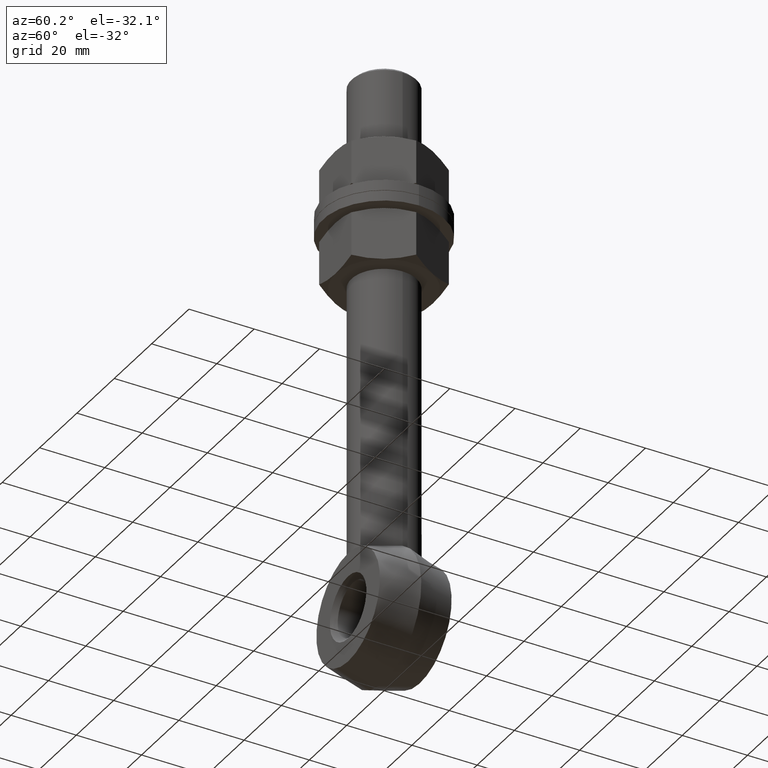
[diagram: clean part render]
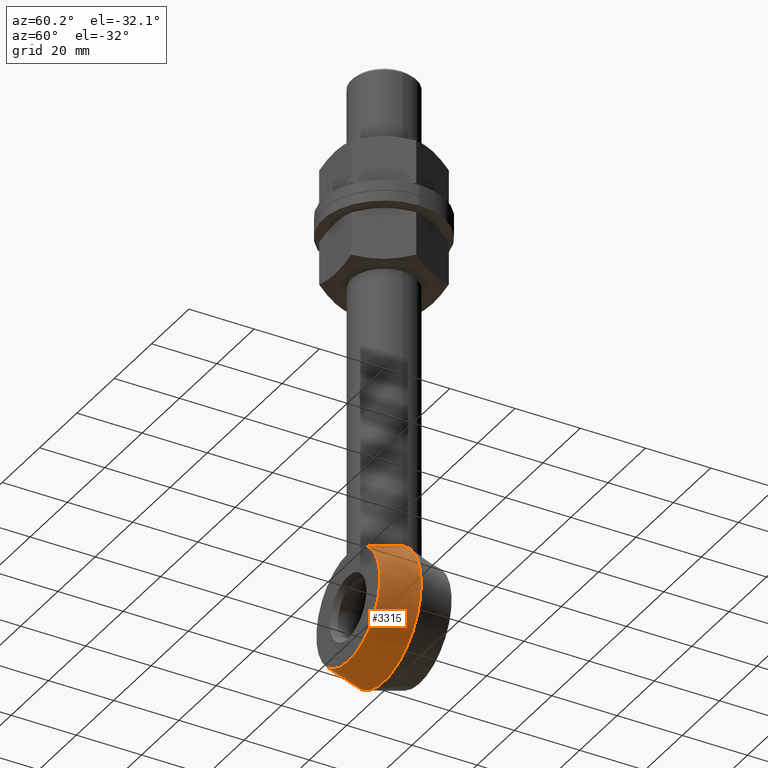
[diagram: same view with one face highlighted and labeled with its STEP entity id]
A machine part, auxiliary view. The second image highlights one B-rep face of the part: STEP entity #3315.
In plain terms, the highlighted conical surface has half-angle 15.255 deg.
Its self-contained STEP definition (entity closure, byte-faithful):
#208 = CARTESIAN_POINT ( 'NONE',  ( -9.999999999999989342, 4.840303024962320483E-16, -66.17949192431122185 ) ) ;
#282 = DIRECTION ( 'NONE',  ( -0.000000000000000000, 1.000000000000000000, -0.000000000000000000 ) ) ;
#283 = CARTESIAN_POINT ( 'NONE',  ( -9.009806786077419360, -4.387856314192352336, -66.99471067820522308 ) ) ;
#382 = CARTESIAN_POINT ( 'NONE',  ( 10.00000000000000711, 0.000000000000000000, -66.17949192431123606 ) ) ;
#442 = EDGE_CURVE ( 'NONE', #5911, #5571, #2050, .T. ) ;
#821 = CARTESIAN_POINT ( 'NONE',  ( -8.703416276451292788, -4.969129270617967720, -67.00786110837803733 ) ) ;
#869 = CARTESIAN_POINT ( 'NONE',  ( -9.999999999999985789, -0.6348035999347009239, -66.37940321302295388 ) ) ;
#891 = CARTESIAN_POINT ( 'NONE',  ( 1.320415377235109045, -9.934116265400342982, -66.24779882474476267 ) ) ;
#939 = CARTESIAN_POINT ( 'NONE',  ( 9.379978053261543991, -3.481774409196121134, -66.91856950906478119 ) ) ;
#959 = CARTESIAN_POINT ( 'NONE',  ( 6.861814362142494517, -7.281629061594006913, -66.84247256873796061 ) ) ;
#1125 = CONICAL_SURFACE ( 'NONE', #1452, 17.00000000000000000, 0.2662520491509255960 ) ;
#1384 = FACE_OUTER_BOUND ( 'NONE', #2594, .T. ) ;
#1398 = CARTESIAN_POINT ( 'NONE',  ( -1.315120860401320924, -9.918598933476685531, -66.25204106258026115 ) ) ;
#1426 = CARTESIAN_POINT ( 'NONE',  ( 2.604065135909640283, -9.660656998349876901, -66.32816868278521838 ) ) ;
#1448 = CARTESIAN_POINT ( 'NONE',  ( 8.153152579458364357, -5.799688211069680577, -66.98374563760933142 ) ) ;
#1452 = AXIS2_PLACEMENT_3D ( 'NONE', #4678, #2577, #2046 ) ;
#1473 = CARTESIAN_POINT ( 'NONE',  ( 9.940081217375096756, -1.270371214191546860, -66.54541451619091674 ) ) ;
#1806 = B_SPLINE_CURVE_WITH_KNOTS ( 'NONE', 3,
 ( #3475, #869, #5603, #4562, #6623, #283, #821, #4539, #4587, #2961, #5072, #4082, #1890, #5095, #1911, #5652, #6145, #2986, #1398, #5118, #6703, #3547, #891, #4606, #1426, #5142, #1962, #5673, #6229, #4150, #4628, #2532, #959, #5168, #2556, #3618, #1448, #1979, #3055, #939, #6207, #4651, #5697, #1473, #6749, #382 ),
 .UNSPECIFIED., .F., .F.,
 ( 4, 2, 2, 2, 2, 2, 2, 2, 2, 2, 2, 2, 2, 2, 2, 2, 2, 2, 2, 2, 2, 2, 4 ),
 ( 2.068959819459525906E-07, 0.001970281942956898704, 0.003940356989931851663, 0.005910432036906804187, 0.007880507083881757580, 0.009850582130856710972, 0.01182065717783166263, 0.01280569470131914106, 0.01379073222480661949, 0.01477576974829409966, 0.01576080727178158156, 0.01773088231875653842, 0.01871591984224402205, 0.01970095736573150222, 0.02167103241270645908, 0.02265606993619393578, 0.02364110745968140900, 0.02462614498316888570, 0.02561118250665636240, 0.02758125755363131579, 0.02856629507711879248, 0.02955133260060626918, 0.03152140764758122604 ),
 .UNSPECIFIED. ) ;
#1890 = CARTESIAN_POINT ( 'NONE',  ( -4.451770471811701491, -8.978602354751371806, -66.51180842962718032 ) ) ;
#1911 = CARTESIAN_POINT ( 'NONE',  ( -3.227106875408471076, -9.470680737395053228, -66.38160066672091375 ) ) ;
#1962 = CARTESIAN_POINT ( 'NONE',  ( 3.548118843663766953, -9.355118314788976264, -66.41327980910449469 ) ) ;
#1979 = CARTESIAN_POINT ( 'NONE',  ( 8.703368358683862382, -4.969154911175262868, -67.00784871070700888 ) ) ;
#2044 = EDGE_CURVE ( 'NONE', #2469, #2469, #6778, .T. ) ;
#2046 = DIRECTION ( 'NONE',  ( 0.000000000000000000, 0.000000000000000000, 1.000000000000000000 ) ) ;
#2050 = CIRCLE ( 'NONE', #5361, 20.00000000000000355 ) ;
#2189 = ORIENTED_EDGE ( 'NONE', *, *, #2044, .T. ) ;
#2469 = VERTEX_POINT ( 'NONE', #4467 ) ;
#2532 = CARTESIAN_POINT ( 'NONE',  ( 6.620337797070874331, -7.501919375299405779, -66.80928247804335740 ) ) ;
#2556 = CARTESIAN_POINT ( 'NONE',  ( 7.541143778264459918, -6.575633526374908833, -66.92737885104658346 ) ) ;
#2577 = DIRECTION ( 'NONE',  ( -0.000000000000000000, 1.000000000000000000, -0.000000000000000000 ) ) ;
#2594 = EDGE_LOOP ( 'NONE', ( #3095, #3752 ) ) ;
#2913 = DIRECTION ( 'NONE',  ( 0.000000000000000000, 0.000000000000000000, 1.000000000000000000 ) ) ;
#2961 = CARTESIAN_POINT ( 'NONE',  ( -6.627173734391593740, -7.517348730356412823, -66.81234919190687549 ) ) ;
#2971 = FACE_BOUND ( 'NONE', #5741, .T. ) ;
#2986 = CARTESIAN_POINT ( 'NONE',  ( -1.639107490482401230, -9.870174628639698966, -66.26666608361753674 ) ) ;
#3055 = CARTESIAN_POINT ( 'NONE',  ( 9.009074844332507936, -4.389024460403426531, -66.99467858775705054 ) ) ;
#3095 = ORIENTED_EDGE ( 'NONE', *, *, #442, .F. ) ;
#3111 = CARTESIAN_POINT ( 'NONE',  ( 0.000000000000000000, 0.000000000000000000, -83.50000000000000000 ) ) ;
#3147 = CARTESIAN_POINT ( 'NONE',  ( 10.00000000000000711, 0.000000000000000000, -66.17949192431123606 ) ) ;
#3315 = ADVANCED_FACE ( 'NONE', ( #1384, #2971 ), #1125, .T. ) ;
#3475 = CARTESIAN_POINT ( 'NONE',  ( -9.999999999999989342, 4.840303024962320483E-16, -66.17949192431122185 ) ) ;
#3547 = CARTESIAN_POINT ( 'NONE',  ( 0.6671754992828610176, -9.999778545406005748, -66.22734054111272428 ) ) ;
#3618 = CARTESIAN_POINT ( 'NONE',  ( 7.956242606182620136, -6.066795640962935998, -66.96847557188976907 ) ) ;
#3710 = DIRECTION ( 'NONE',  ( 0.000000000000000000, 0.000000000000000000, 1.000000000000000000 ) ) ;
#3752 = ORIENTED_EDGE ( 'NONE', *, *, #5215, .F. ) ;
#4082 = CARTESIAN_POINT ( 'NONE',  ( -5.026540163907821324, -8.669587845681910210, -66.58734197203376937 ) ) ;
#4150 = CARTESIAN_POINT ( 'NONE',  ( 5.848344541794114448, -8.118176449988871113, -66.70088552193209352 ) ) ;
#4467 = CARTESIAN_POINT ( 'NONE',  ( 0.000000000000000000, -11.00000000000000000, -66.50000000000000000 ) ) ;
#4539 = CARTESIAN_POINT ( 'NONE',  ( -7.969270702384871008, -6.077205366072451653, -66.97568009636033537 ) ) ;
#4562 = CARTESIAN_POINT ( 'NONE',  ( -9.694836938361417467, -2.534965818873927468, -66.80162771897234109 ) ) ;
#4587 = CARTESIAN_POINT ( 'NONE',  ( -7.552057554879087142, -6.587593667447520396, -66.93102603144643581 ) ) ;
#4606 = CARTESIAN_POINT ( 'NONE',  ( 2.285066148723426949, -9.740945199604137628, -66.30480588651649043 ) ) ;
#4628 = CARTESIAN_POINT ( 'NONE',  ( 6.114311408671198045, -7.919776692471258706, -66.73858635537163764 ) ) ;
#4651 = CARTESIAN_POINT ( 'NONE',  ( 9.676767397169985685, -2.543261836825747579, -66.79371139632957011 ) ) ;
#4678 = CARTESIAN_POINT ( 'NONE',  ( 0.000000000000000000, -11.00000000000000000, -83.50000000000000000 ) ) ;
#5072 = CARTESIAN_POINT ( 'NONE',  ( -6.113050587191366070, -7.940936465670364264, -66.73744052423290896 ) ) ;
#5095 = CARTESIAN_POINT ( 'NONE',  ( -3.539973602093852367, -9.358257158311531043, -66.41243786794382231 ) ) ;
#5118 = CARTESIAN_POINT ( 'NONE',  ( -0.6606217280623479793, -9.983572838069525446, -66.23232541136975726 ) ) ;
#5142 = CARTESIAN_POINT ( 'NONE',  ( 3.236880436023269247, -9.467420657957287489, -66.38250436119778897 ) ) ;
#5168 = CARTESIAN_POINT ( 'NONE',  ( 7.322217407229925534, -6.818485929619161112, -66.90151846914426415 ) ) ;
#5215 = EDGE_CURVE ( 'NONE', #5571, #5911, #1806, .T. ) ;
#5361 = AXIS2_PLACEMENT_3D ( 'NONE', #3111, #6822, #3710 ) ;
#5571 = VERTEX_POINT ( 'NONE', #208 ) ;
#5603 = CARTESIAN_POINT ( 'NONE',  ( -9.940139474985739909, -1.268677335695094444, -66.54491431101273236 ) ) ;
#5652 = CARTESIAN_POINT ( 'NONE',  ( -2.598302276428667845, -9.662134220516707117, -66.32773998071161259 ) ) ;
#5673 = CARTESIAN_POINT ( 'NONE',  ( 4.455410200496838335, -8.976573065215752933, -66.51229813072740171 ) ) ;
#5697 = CARTESIAN_POINT ( 'NONE',  ( 9.755019156617571241, -2.223592962187393329, -66.73842425688717128 ) ) ;
#5707 = CARTESIAN_POINT ( 'NONE',  ( 0.000000000000000000, -11.00000000000000000, -83.50000000000000000 ) ) ;
#5741 = EDGE_LOOP ( 'NONE', ( #2189 ) ) ;
#5911 = VERTEX_POINT ( 'NONE', #3147 ) ;
#6145 = CARTESIAN_POINT ( 'NONE',  ( -2.280698234392223078, -9.741942112784210295, -66.30451432862818706 ) ) ;
#6207 = CARTESIAN_POINT ( 'NONE',  ( 9.488900497698839587, -3.173133368510832941, -66.88382834301492608 ) ) ;
#6229 = CARTESIAN_POINT ( 'NONE',  ( 5.030207193969467916, -8.667681731379223820, -66.58782210933060242 ) ) ;
#6623 = CARTESIAN_POINT ( 'NONE',  ( -9.505604731175527178, -3.173858858093380420, -66.89260771451355936 ) ) ;
#6703 = CARTESIAN_POINT ( 'NONE',  ( -0.3285963743000062109, -10.00010989683604734, -66.22723907465655202 ) ) ;
#6726 = AXIS2_PLACEMENT_3D ( 'NONE', #5707, #282, #2913 ) ;
#6749 = CARTESIAN_POINT ( 'NONE',  ( 10.00000000000001066, -0.6351725604654645529, -66.37951940545664797 ) ) ;
#6778 = CIRCLE ( 'NONE', #6726, 17.00000000000000000 ) ;
#6822 = DIRECTION ( 'NONE',  ( -0.000000000000000000, 1.000000000000000000, -0.000000000000000000 ) ) ;